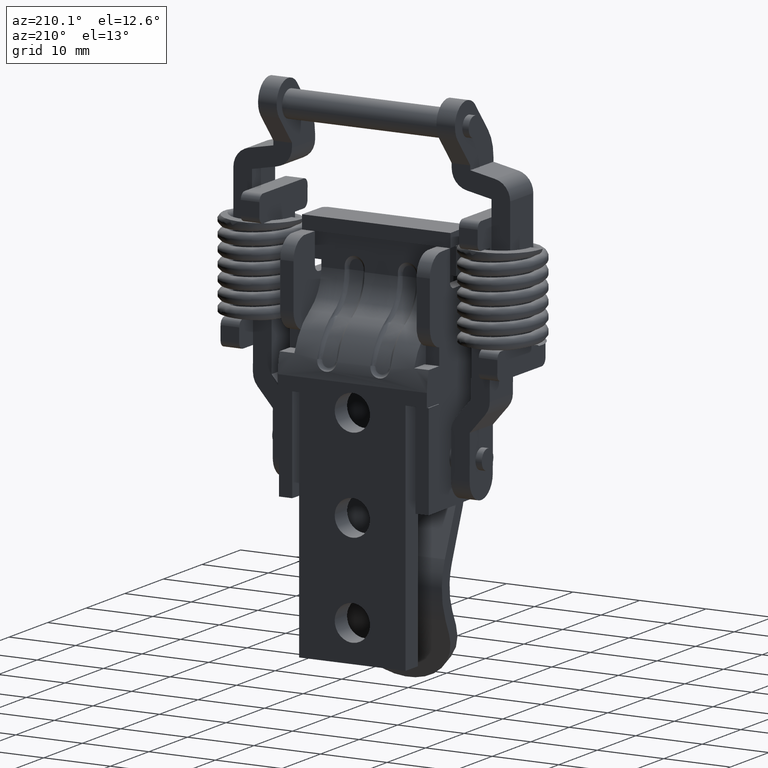
[diagram: clean part render]
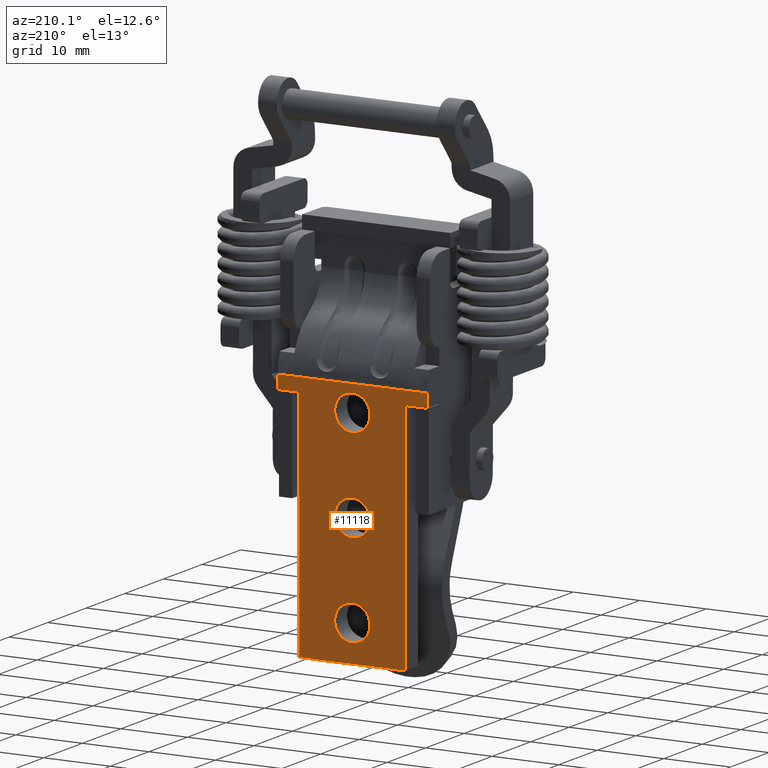
[diagram: same view with one face highlighted and labeled with its STEP entity id]
A machine part, auxiliary view. The second image highlights one B-rep face of the part: STEP entity #11118.
In plain terms, the highlighted face is a freeform B-spline surface patch.
Its self-contained STEP definition (entity closure, byte-faithful):
#6431=CARTESIAN_POINT('',(4.499999999999950,2.641831260774902,-39.207912456517597));
#6432=VERTEX_POINT('',#6431);
#6438=CARTESIAN_POINT('',(4.499999999999949,0.0,-36.350000000000001));
#6439=VERTEX_POINT('',#6438);
#6440=CARTESIAN_POINT('',(4.499999999999950,2.641831260774902,-39.207912456517604));
#6441=CARTESIAN_POINT('',(4.499999999999949,2.650000000000001,-39.104116700367214));
#6442=CARTESIAN_POINT('',(4.499999999999949,2.650000000000000,-39.0));
#6443=CARTESIAN_POINT('',(4.499999999999949,2.650000000000000,-36.350000000000009));
#6444=CARTESIAN_POINT('',(4.499999999999949,0.0,-36.350000000000001));
#6452=(BOUNDED_CURVE()B_SPLINE_CURVE(2,(#6440,#6441,#6442,#6443,#6444),.UNSPECIFIED.,.F.,.U.)B_SPLINE_CURVE_WITH_KNOTS((3,2,3),(0.736331569735948,0.750000000000000,1.0),.UNSPECIFIED.)CURVE()GEOMETRIC_REPRESENTATION_ITEM()RATIONAL_B_SPLINE_CURVE((0.969723917770304,0.983986437855339,1.0,0.707106781186548,1.0))REPRESENTATION_ITEM(''));
#6453=EDGE_CURVE('',#6432,#6439,#6452,.T.);
#6455=CARTESIAN_POINT('',(4.499999999999949,-2.641831260774902,-38.792087543482403));
#6456=VERTEX_POINT('',#6455);
#6457=CARTESIAN_POINT('',(4.499999999999949,0.0,-36.350000000000001));
#6458=CARTESIAN_POINT('',(4.499999999999949,-2.449638660238073,-36.349999999999994));
#6459=CARTESIAN_POINT('',(4.499999999999949,-2.641831260774902,-38.792087543482396));
#6467=(BOUNDED_CURVE()B_SPLINE_CURVE(2,(#6457,#6458,#6459),.UNSPECIFIED.,.F.,.U.)B_SPLINE_CURVE_WITH_KNOTS((3,3),(0.0,0.236331569735948),.UNSPECIFIED.)CURVE()GEOMETRIC_REPRESENTATION_ITEM()RATIONAL_B_SPLINE_CURVE((1.0,0.723120343331209,0.969723917770305))REPRESENTATION_ITEM(''));
#6468=EDGE_CURVE('',#6439,#6456,#6467,.T.);
#6518=CARTESIAN_POINT('',(4.499999999999949,0.0,-41.649999999999999));
#6519=VERTEX_POINT('',#6518);
#6520=CARTESIAN_POINT('',(4.499999999999949,-2.641831260774902,-38.792087543482396));
#6521=CARTESIAN_POINT('',(4.499999999999949,-2.650000000000000,-38.895883299632779));
#6522=CARTESIAN_POINT('',(4.499999999999949,-2.650000000000000,-39.0));
#6523=CARTESIAN_POINT('',(4.499999999999949,-2.650000000000000,-41.650000000000006));
#6524=CARTESIAN_POINT('',(4.499999999999949,0.0,-41.649999999999999));
#6532=(BOUNDED_CURVE()B_SPLINE_CURVE(2,(#6520,#6521,#6522,#6523,#6524),.UNSPECIFIED.,.F.,.U.)B_SPLINE_CURVE_WITH_KNOTS((3,2,3),(0.236331569735949,0.250000000000000,0.500000000000000),.UNSPECIFIED.)CURVE()GEOMETRIC_REPRESENTATION_ITEM()RATIONAL_B_SPLINE_CURVE((0.969723917770305,0.983986437855339,1.0,0.707106781186548,1.0))REPRESENTATION_ITEM(''));
#6533=EDGE_CURVE('',#6456,#6519,#6532,.T.);
#6535=CARTESIAN_POINT('',(4.499999999999949,0.0,-41.649999999999999));
#6536=CARTESIAN_POINT('',(4.499999999999949,2.449638660238067,-41.649999999999991));
#6537=CARTESIAN_POINT('',(4.499999999999951,2.641831260774902,-39.207912456517604));
#6545=(BOUNDED_CURVE()B_SPLINE_CURVE(2,(#6535,#6536,#6537),.UNSPECIFIED.,.F.,.U.)B_SPLINE_CURVE_WITH_KNOTS((3,3),(0.500000000000000,0.736331569735948),.UNSPECIFIED.)CURVE()GEOMETRIC_REPRESENTATION_ITEM()RATIONAL_B_SPLINE_CURVE((1.0,0.723120343331209,0.969723917770304))REPRESENTATION_ITEM(''));
#6546=EDGE_CURVE('',#6519,#6432,#6545,.T.);
#6621=CARTESIAN_POINT('',(4.499999999999950,2.641831260774902,-53.207912456517597));
#6622=VERTEX_POINT('',#6621);
#6628=CARTESIAN_POINT('',(4.499999999999949,0.0,-50.350000000000001));
#6629=VERTEX_POINT('',#6628);
#6630=CARTESIAN_POINT('',(4.499999999999950,2.641831260774902,-53.207912456517604));
#6631=CARTESIAN_POINT('',(4.499999999999949,2.650000000000000,-53.104116700367229));
#6632=CARTESIAN_POINT('',(4.499999999999949,2.650000000000000,-53.0));
#6633=CARTESIAN_POINT('',(4.499999999999949,2.650000000000000,-50.349999999999994));
#6634=CARTESIAN_POINT('',(4.499999999999949,0.0,-50.350000000000001));
#6642=(BOUNDED_CURVE()B_SPLINE_CURVE(2,(#6630,#6631,#6632,#6633,#6634),.UNSPECIFIED.,.F.,.U.)B_SPLINE_CURVE_WITH_KNOTS((3,2,3),(0.736331569735949,0.750000000000000,1.0),.UNSPECIFIED.)CURVE()GEOMETRIC_REPRESENTATION_ITEM()RATIONAL_B_SPLINE_CURVE((0.969723917770305,0.983986437855339,1.0,0.707106781186548,1.0))REPRESENTATION_ITEM(''));
#6643=EDGE_CURVE('',#6622,#6629,#6642,.T.);
#6645=CARTESIAN_POINT('',(4.499999999999949,-2.641831260774902,-52.792087543482403));
#6646=VERTEX_POINT('',#6645);
#6647=CARTESIAN_POINT('',(4.499999999999949,0.0,-50.350000000000001));
#6648=CARTESIAN_POINT('',(4.499999999999949,-2.449638660238079,-50.350000000000009));
#6649=CARTESIAN_POINT('',(4.499999999999949,-2.641831260774902,-52.792087543482403));
#6657=(BOUNDED_CURVE()B_SPLINE_CURVE(2,(#6647,#6648,#6649),.UNSPECIFIED.,.F.,.U.)B_SPLINE_CURVE_WITH_KNOTS((3,3),(0.0,0.236331569735949),.UNSPECIFIED.)CURVE()GEOMETRIC_REPRESENTATION_ITEM()RATIONAL_B_SPLINE_CURVE((1.0,0.723120343331208,0.969723917770306))REPRESENTATION_ITEM(''));
#6658=EDGE_CURVE('',#6629,#6646,#6657,.T.);
#6708=CARTESIAN_POINT('',(4.499999999999949,0.0,-55.649999999999999));
#6709=VERTEX_POINT('',#6708);
#6710=CARTESIAN_POINT('',(4.499999999999949,-2.641831260774902,-52.792087543482403));
#6711=CARTESIAN_POINT('',(4.499999999999949,-2.650000000000000,-52.895883299632779));
#6712=CARTESIAN_POINT('',(4.499999999999949,-2.650000000000000,-53.0));
#6713=CARTESIAN_POINT('',(4.499999999999949,-2.650000000000000,-55.649999999999999));
#6714=CARTESIAN_POINT('',(4.499999999999949,0.0,-55.649999999999999));
#6722=(BOUNDED_CURVE()B_SPLINE_CURVE(2,(#6710,#6711,#6712,#6713,#6714),.UNSPECIFIED.,.F.,.U.)B_SPLINE_CURVE_WITH_KNOTS((3,2,3),(0.236331569735949,0.250000000000000,0.500000000000000),.UNSPECIFIED.)CURVE()GEOMETRIC_REPRESENTATION_ITEM()RATIONAL_B_SPLINE_CURVE((0.969723917770306,0.983986437855340,1.0,0.707106781186548,1.0))REPRESENTATION_ITEM(''));
#6723=EDGE_CURVE('',#6646,#6709,#6722,.T.);
#6725=CARTESIAN_POINT('',(4.499999999999949,0.0,-55.649999999999999));
#6726=CARTESIAN_POINT('',(4.499999999999949,2.449638660238073,-55.649999999999999));
#6727=CARTESIAN_POINT('',(4.499999999999950,2.641831260774902,-53.207912456517604));
#6735=(BOUNDED_CURVE()B_SPLINE_CURVE(2,(#6725,#6726,#6727),.UNSPECIFIED.,.F.,.U.)B_SPLINE_CURVE_WITH_KNOTS((3,3),(0.500000000000000,0.736331569735949),.UNSPECIFIED.)CURVE()GEOMETRIC_REPRESENTATION_ITEM()RATIONAL_B_SPLINE_CURVE((1.0,0.723120343331208,0.969723917770305))REPRESENTATION_ITEM(''));
#6736=EDGE_CURVE('',#6709,#6622,#6735,.T.);
#6811=CARTESIAN_POINT('',(4.499999999999950,2.641831260774902,-67.207912456517619));
#6812=VERTEX_POINT('',#6811);
#6818=CARTESIAN_POINT('',(4.499999999999949,0.0,-64.350000000000009));
#6819=VERTEX_POINT('',#6818);
#6820=CARTESIAN_POINT('',(4.499999999999950,2.641831260774902,-67.207912456517619));
#6821=CARTESIAN_POINT('',(4.499999999999949,2.650000000000001,-67.104116700367229));
#6822=CARTESIAN_POINT('',(4.499999999999949,2.650000000000000,-67.0));
#6823=CARTESIAN_POINT('',(4.499999999999949,2.650000000000000,-64.350000000000009));
#6824=CARTESIAN_POINT('',(4.499999999999949,0.0,-64.350000000000009));
#6832=(BOUNDED_CURVE()B_SPLINE_CURVE(2,(#6820,#6821,#6822,#6823,#6824),.UNSPECIFIED.,.F.,.U.)B_SPLINE_CURVE_WITH_KNOTS((3,2,3),(0.736331569735948,0.750000000000000,1.0),.UNSPECIFIED.)CURVE()GEOMETRIC_REPRESENTATION_ITEM()RATIONAL_B_SPLINE_CURVE((0.969723917770304,0.983986437855339,1.0,0.707106781186548,1.0))REPRESENTATION_ITEM(''));
#6833=EDGE_CURVE('',#6812,#6819,#6832,.T.);
#6835=CARTESIAN_POINT('',(4.499999999999949,-2.641831260774902,-66.792087543482381));
#6836=VERTEX_POINT('',#6835);
#6837=CARTESIAN_POINT('',(4.499999999999949,0.0,-64.350000000000009));
#6838=CARTESIAN_POINT('',(4.499999999999951,-2.449638660238056,-64.349999999999994));
#6839=CARTESIAN_POINT('',(4.499999999999949,-2.641831260774902,-66.792087543482381));
#6847=(BOUNDED_CURVE()B_SPLINE_CURVE(2,(#6837,#6838,#6839),.UNSPECIFIED.,.F.,.U.)B_SPLINE_CURVE_WITH_KNOTS((3,3),(0.0,0.236331569735947),.UNSPECIFIED.)CURVE()GEOMETRIC_REPRESENTATION_ITEM()RATIONAL_B_SPLINE_CURVE((1.0,0.723120343331210,0.969723917770303))REPRESENTATION_ITEM(''));
#6848=EDGE_CURVE('',#6819,#6836,#6847,.T.);
#6898=CARTESIAN_POINT('',(4.499999999999949,0.0,-69.650000000000006));
#6899=VERTEX_POINT('',#6898);
#6900=CARTESIAN_POINT('',(4.499999999999949,-2.641831260774902,-66.792087543482381));
#6901=CARTESIAN_POINT('',(4.499999999999949,-2.650000000000000,-66.895883299632771));
#6902=CARTESIAN_POINT('',(4.499999999999949,-2.650000000000000,-67.0));
#6903=CARTESIAN_POINT('',(4.499999999999949,-2.650000000000000,-69.650000000000006));
#6904=CARTESIAN_POINT('',(4.499999999999949,0.0,-69.650000000000006));
#6912=(BOUNDED_CURVE()B_SPLINE_CURVE(2,(#6900,#6901,#6902,#6903,#6904),.UNSPECIFIED.,.F.,.U.)B_SPLINE_CURVE_WITH_KNOTS((3,2,3),(0.236331569735948,0.250000000000000,0.500000000000000),.UNSPECIFIED.)CURVE()GEOMETRIC_REPRESENTATION_ITEM()RATIONAL_B_SPLINE_CURVE((0.969723917770304,0.983986437855339,1.0,0.707106781186548,1.0))REPRESENTATION_ITEM(''));
#6913=EDGE_CURVE('',#6836,#6899,#6912,.T.);
#6915=CARTESIAN_POINT('',(4.499999999999949,0.0,-69.650000000000006));
#6916=CARTESIAN_POINT('',(4.499999999999949,2.449638660238062,-69.650000000000006));
#6917=CARTESIAN_POINT('',(4.499999999999951,2.641831260774902,-67.207912456517619));
#6925=(BOUNDED_CURVE()B_SPLINE_CURVE(2,(#6915,#6916,#6917),.UNSPECIFIED.,.F.,.U.)B_SPLINE_CURVE_WITH_KNOTS((3,3),(0.500000000000000,0.736331569735948),.UNSPECIFIED.)CURVE()GEOMETRIC_REPRESENTATION_ITEM()RATIONAL_B_SPLINE_CURVE((1.0,0.723120343331209,0.969723917770303))REPRESENTATION_ITEM(''));
#6926=EDGE_CURVE('',#6899,#6812,#6925,.T.);
#6966=CARTESIAN_POINT('',(4.499999999999949,11.206934018285359,-35.105342422081151));
#6967=VERTEX_POINT('',#6966);
#6981=CARTESIAN_POINT('',(4.500000000000000,11.206934018285381,-37.150000000000013));
#6982=VERTEX_POINT('',#6981);
#6983=CARTESIAN_POINT('',(4.499999999999949,11.206934018285359,-35.105342422081151));
#6984=CARTESIAN_POINT('',(4.500000000000000,11.206934018285381,-37.150000000000013));
#6985=QUASI_UNIFORM_CURVE('',1,(#6983,#6984),.UNSPECIFIED.,.F.,.U.);
#6986=EDGE_CURVE('',#6967,#6982,#6985,.T.);
#7001=CARTESIAN_POINT('',(4.500000000000000,8.0,-37.150000000000013));
#7002=VERTEX_POINT('',#7001);
#7016=CARTESIAN_POINT('',(4.500000000000000,11.206934018285381,-37.150000000000013));
#7017=CARTESIAN_POINT('',(4.500000000000000,8.0,-37.150000000000013));
#7018=QUASI_UNIFORM_CURVE('',1,(#7016,#7017),.UNSPECIFIED.,.F.,.U.);
#7019=EDGE_CURVE('',#6982,#7002,#7018,.T.);
#7066=CARTESIAN_POINT('',(4.500000000000000,-11.206934018285320,-37.150000000000013));
#7067=VERTEX_POINT('',#7066);
#7073=CARTESIAN_POINT('',(4.499999999999949,-11.206934018285320,-35.105342422081151));
#7074=VERTEX_POINT('',#7073);
#7075=CARTESIAN_POINT('',(4.499999999999949,-11.206934018285320,-35.105342422081151));
#7076=CARTESIAN_POINT('',(4.500000000000000,-11.206934018285320,-37.150000000000013));
#7077=QUASI_UNIFORM_CURVE('',1,(#7075,#7076),.UNSPECIFIED.,.F.,.U.);
#7078=EDGE_CURVE('',#7074,#7067,#7077,.T.);
#7108=CARTESIAN_POINT('',(4.500000000000000,-7.999999999999900,-37.150000000000013));
#7109=VERTEX_POINT('',#7108);
#7117=CARTESIAN_POINT('',(4.500000000000000,-11.206934018285320,-37.150000000000013));
#7118=CARTESIAN_POINT('',(4.500000000000000,-7.999999999999900,-37.150000000000013));
#7119=QUASI_UNIFORM_CURVE('',1,(#7117,#7118),.UNSPECIFIED.,.F.,.U.);
#7120=EDGE_CURVE('',#7067,#7109,#7119,.T.);
#10428=CARTESIAN_POINT('',(4.499999999999949,-8.0,-72.500000000000000));
#10429=VERTEX_POINT('',#10428);
#10430=CARTESIAN_POINT('',(4.500000000000000,-7.999999999999900,-37.150000000000013));
#10431=CARTESIAN_POINT('',(4.499999999999949,-8.0,-72.500000000000000));
#10432=QUASI_UNIFORM_CURVE('',1,(#10430,#10431),.UNSPECIFIED.,.F.,.U.);
#10433=EDGE_CURVE('',#7109,#10429,#10432,.T.);
#10464=CARTESIAN_POINT('',(4.500000000000000,8.0,-72.500000000000000));
#10465=VERTEX_POINT('',#10464);
#10466=CARTESIAN_POINT('',(4.500000000000000,8.0,-72.500000000000000));
#10467=CARTESIAN_POINT('',(4.500000000000000,8.0,-37.150000000000013));
#10468=QUASI_UNIFORM_CURVE('',1,(#10466,#10467),.UNSPECIFIED.,.F.,.U.);
#10469=EDGE_CURVE('',#10465,#7002,#10468,.T.);
#10730=CARTESIAN_POINT('',(4.500000000000000,8.0,-72.500000000000000));
#10731=CARTESIAN_POINT('',(4.499999999999949,-8.0,-72.500000000000000));
#10732=QUASI_UNIFORM_CURVE('',1,(#10730,#10731),.UNSPECIFIED.,.F.,.U.);
#10733=EDGE_CURVE('',#10465,#10429,#10732,.T.);
#11081=CARTESIAN_POINT('',(4.500000000000000,-12.326506683269610,-74.367863073538928));
#11082=CARTESIAN_POINT('',(4.500000000000000,-12.326506683269599,-33.237478345539323));
#11083=CARTESIAN_POINT('',(4.500000000000000,12.326507284456451,-74.367863073538928));
#11084=CARTESIAN_POINT('',(4.500000000000000,12.326507284456451,-33.237478345539323));
#11085=B_SPLINE_SURFACE_WITH_KNOTS('',1,1,((#11081,#11083),(#11082,#11084)),.UNSPECIFIED.,.F.,.F.,.U.,(2,2),(2,2),(0.0,41.130384727999612),(0.0,24.653013967726050),.UNSPECIFIED.);
#11086=ORIENTED_EDGE('',*,*,#10469,.T.);
#11087=ORIENTED_EDGE('',*,*,#7019,.F.);
#11088=ORIENTED_EDGE('',*,*,#6986,.F.);
#11089=CARTESIAN_POINT('',(4.499999999999949,11.206934018285359,-35.105342422081151));
#11090=CARTESIAN_POINT('',(4.499999999999949,-11.206934018285320,-35.105342422081151));
#11091=QUASI_UNIFORM_CURVE('',1,(#11089,#11090),.UNSPECIFIED.,.F.,.U.);
#11092=EDGE_CURVE('',#6967,#7074,#11091,.T.);
#11093=ORIENTED_EDGE('',*,*,#11092,.T.);
#11094=ORIENTED_EDGE('',*,*,#7078,.T.);
#11095=ORIENTED_EDGE('',*,*,#7120,.T.);
#11096=ORIENTED_EDGE('',*,*,#10433,.T.);
#11097=ORIENTED_EDGE('',*,*,#10733,.F.);
#11098=EDGE_LOOP('',(#11086,#11087,#11088,#11093,#11094,#11095,#11096,#11097));
#11099=FACE_OUTER_BOUND('',#11098,.T.);
#11100=ORIENTED_EDGE('',*,*,#6926,.F.);
#11101=ORIENTED_EDGE('',*,*,#6913,.F.);
#11102=ORIENTED_EDGE('',*,*,#6848,.F.);
#11103=ORIENTED_EDGE('',*,*,#6833,.F.);
#11104=EDGE_LOOP('',(#11100,#11101,#11102,#11103));
#11105=FACE_BOUND('',#11104,.T.);
#11106=ORIENTED_EDGE('',*,*,#6736,.F.);
#11107=ORIENTED_EDGE('',*,*,#6723,.F.);
#11108=ORIENTED_EDGE('',*,*,#6658,.F.);
#11109=ORIENTED_EDGE('',*,*,#6643,.F.);
#11110=EDGE_LOOP('',(#11106,#11107,#11108,#11109));
#11111=FACE_BOUND('',#11110,.T.);
#11112=ORIENTED_EDGE('',*,*,#6546,.F.);
#11113=ORIENTED_EDGE('',*,*,#6533,.F.);
#11114=ORIENTED_EDGE('',*,*,#6468,.F.);
#11115=ORIENTED_EDGE('',*,*,#6453,.F.);
#11116=EDGE_LOOP('',(#11112,#11113,#11114,#11115));
#11117=FACE_BOUND('',#11116,.T.);
#11118=ADVANCED_FACE('',(#11099,#11105,#11111,#11117),#11085,.F.);